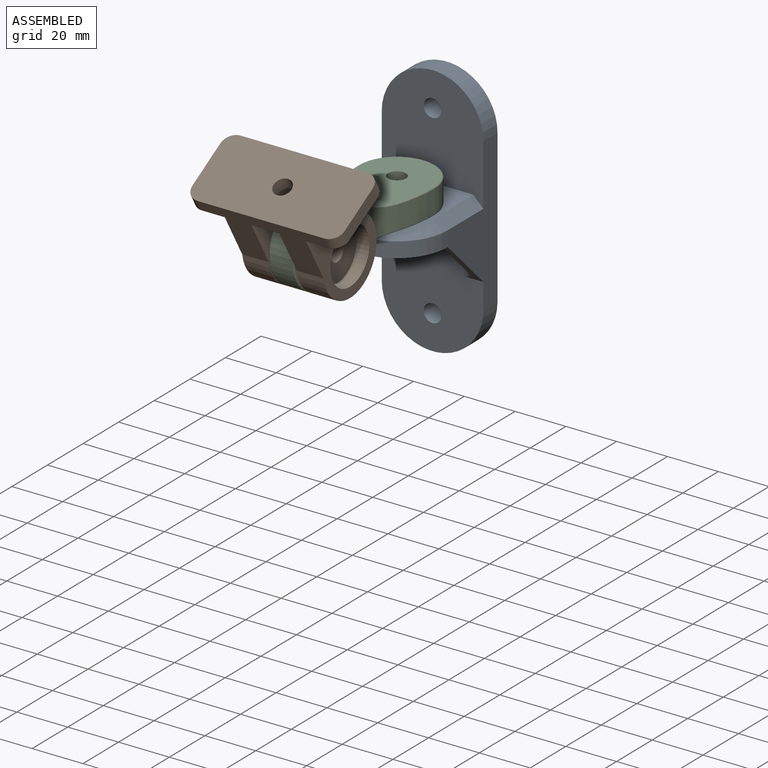
[diagram: assembled view]
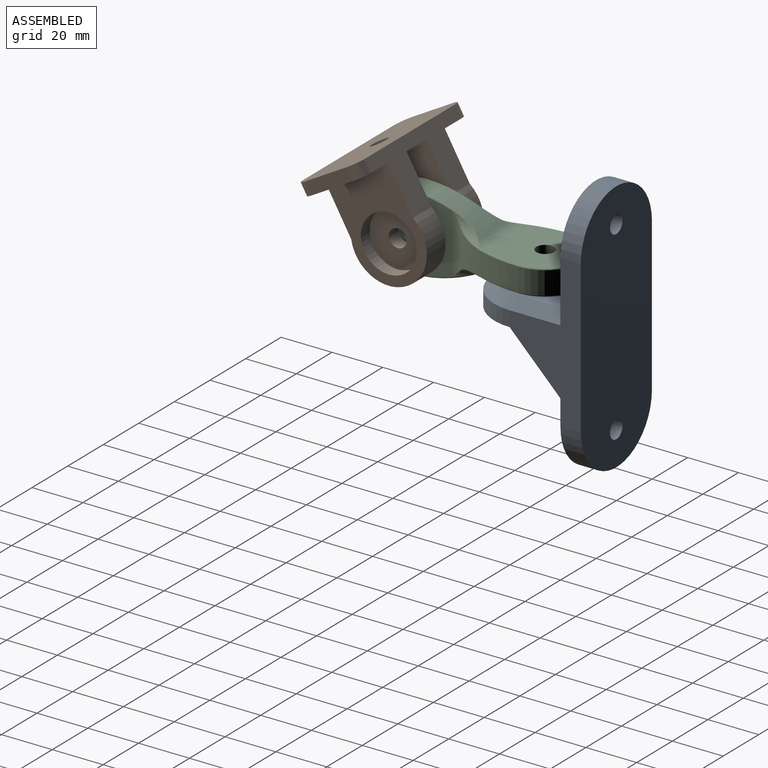
[diagram: assembled view, second angle]
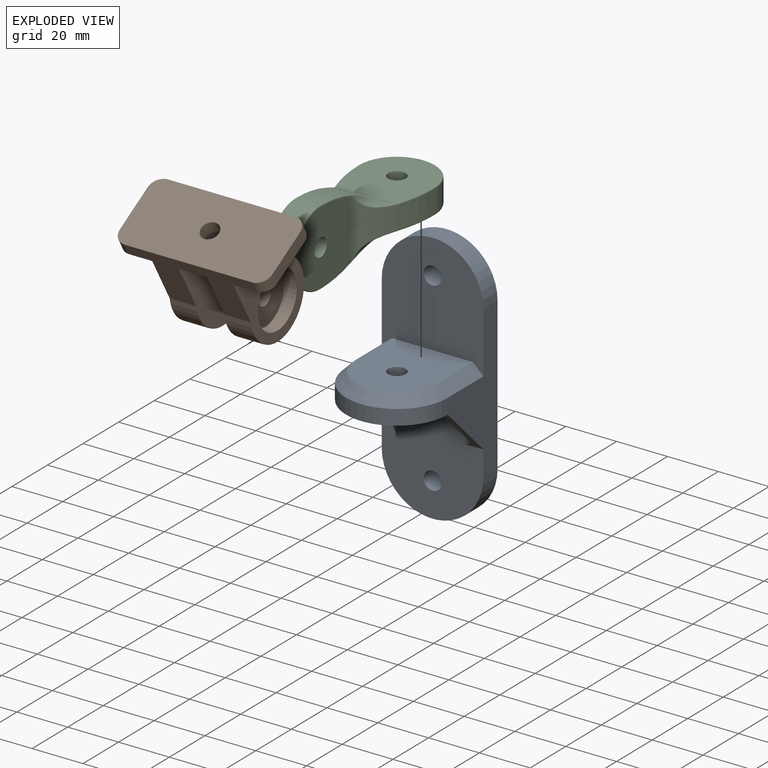
[diagram: exploded view]
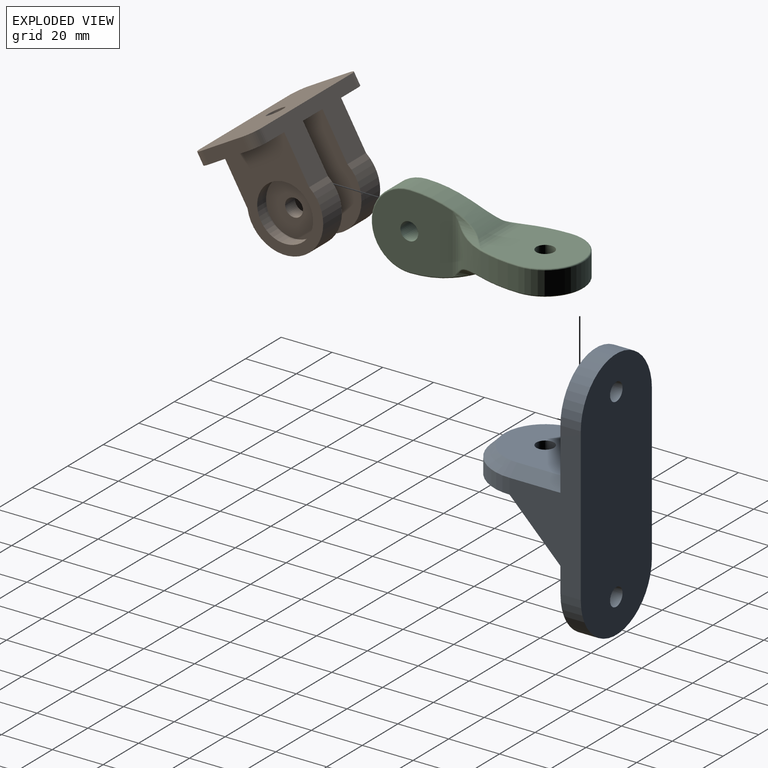
[diagram: exploded view, second angle]
ASSEMBLY  parts=3 mates=2
PART A: 27 faces, bbox 40x48x100 mm
  f0: plane 40x35mm, normal (0,0,-1), area 949.8mm2, adj f10,f11,f13,f15,f18,f20,f21
  f1: plane 44x40mm, normal (0,-1,0), area 1405.8mm2, adj f2,f4,f5,f6,f12,f24,f26
  f2: plane 60x28mm, normal (-1,0,0), area 800mm2, adj f1,f3,f6,f8,f9,f10,f13,f26
  f3: cylinder r=20mm len=40mm, axis (0,1,0), area 502.7mm2, adj f2,f4,f8,f9
  f4: plane 60x28mm, normal (1,0,0), area 800mm2, adj f1,f3,f6,f8,f9,f10,f15,f24
  f5: cylinder r=3.5mm len=8mm, axis (0,1,0), area 175.9mm2, adj f1,f9
  f6: cylinder r=20mm len=40mm, axis (0,1,0), area 502.7mm2, adj f1,f2,f4,f9
  f7: cylinder r=3.5mm len=8mm, axis (0,1,0), area 175.9mm2, adj f8,f9
  f8: plane 45x40mm, normal (0,-1,0), area 1349.8mm2, adj f2,f3,f4,f7,f13,f15,f17,f20
  f9: plane 100x40mm, normal (0,1,0), area 3579.7mm2, adj f2,f3,f4,f5,f6,f7
  f10: cylinder r=20mm len=40mm, axis (0,0,-1), area 377mm2, adj f0,f2,f4,f25
  f11: cylinder r=3.5mm len=10mm, axis (0,0,-1), area 219.9mm2, adj f0,f12
  f12: plane 36x32mm, normal (0,0,1), area 1003.6mm2, adj f1,f11,f24,f25,f26
  f13: plane 20x20mm, normal (0,-0.71,-0.71), area 100mm2, adj f0,f2,f8,f14,f17,f18
  f14: plane 10x10mm, normal (1,0,0), area 50mm2, adj f13,f17,f18
  f15: plane 20x20mm, normal (0,-0.71,-0.71), area 100mm2, adj f0,f4,f8,f16,f21,f23
  f16: plane 10x10mm, normal (-1,0,0), area 50mm2, adj f15,f21,f23
  f17: cylinder r=5mm len=15mm, axis (0,0,1), area 103.5mm2, adj f8,f13,f14,f19
  f18: cylinder r=5mm len=15mm, axis (0,1,0), area 103.5mm2, adj f0,f13,f14,f19
  f19: sphere r=5mm, area 39.3mm2, adj f17,f18,f20
  f20: cylinder r=5mm len=24mm, axis (1,0,0), area 188.5mm2, adj f0,f8,f19,f22
  f21: cylinder r=5mm len=15mm, axis (0,1,0), area 103.5mm2, adj f0,f15,f16,f22
  f22: sphere r=5mm, area 39.3mm2, adj f20,f21,f23
  f23: cylinder r=5mm len=15mm, axis (0,0,-1), area 103.5mm2, adj f8,f15,f16,f22
  f24: plane 20x4mm, normal (0.71,0,0.71), area 113.1mm2, adj f1,f4,f12,f25
  f25: cone r=16mm half-angle=45deg, axis (0,0,-1), area 319.9mm2, adj f10,f12,f24,f26
  f26: plane 20x4mm, normal (-0.71,0,0.71), area 113.1mm2, adj f1,f2,f12,f25
PART B: 25 faces, bbox 60x45x30 mm
  f0: cylinder r=3.5mm len=7mm, axis (1,0,0), area 121mm2, adj f19,f24
  f1: cylinder r=3.5mm len=7mm, axis (1,0,0), area 121mm2, adj f20,f22
  f2: plane 50x24.62mm, normal (0,0,1), area 661.9mm2, adj f4,f5,f6,f7,f13,f14,f15,f16
  f3: plane 50x24.62mm, normal (0,0,-1), area 661.9mm2, adj f4,f5,f6,f9,f10,f14,f15,f16
  f4: cylinder r=15mm len=30mm, axis (1,0,0), area 610.5mm2, adj f2,f3,f17,f19
  f5: cylinder r=15mm len=30mm, axis (1,0,0), area 610.5mm2, adj f2,f3,f16,f20
  f6: plane 28x14mm, normal (0,1,0), area 381.3mm2, adj f2,f3,f7,f8,f9,f17
  f7: cylinder r=5mm len=5mm, axis (0,1,0), area 39.3mm2, adj f2,f6,f8,f14
  f8: plane 18x5mm, normal (-1,0,0), area 90mm2, adj f6,f7,f9,f14
  f9: cylinder r=5mm len=5mm, axis (0,1,0), area 39.3mm2, adj f3,f6,f8,f14
  f10: cylinder r=5mm len=5mm, axis (0,1,0), area 39.3mm2, adj f3,f11,f14,f15
  f11: plane 18x5mm, normal (1,0,0), area 90mm2, adj f10,f13,f14,f15
  f12: cylinder r=3.5mm len=7mm, axis (0,1,0), area 110mm2, adj f14,f18
  f13: cylinder r=5mm len=5mm, axis (0,1,0), area 39.3mm2, adj f2,f11,f14,f15
  f14: plane 60x28mm, normal (0,-1,0), area 1620.1mm2, adj f2,f3,f7,f8,f9,f10,f11,f12
  f15: plane 28x14mm, normal (0,1,0), area 381.3mm2, adj f2,f3,f10,f11,f13,f16
  f16: plane 40x30mm, normal (1,0,0), area 680.5mm2, adj f2,f3,f5,f15,f21
  f17: plane 40x30mm, normal (-1,0,0), area 680.5mm2, adj f2,f3,f4,f6,f23
  f18: plane 28x11mm, normal (0,1,0), area 269.5mm2, adj f2,f3,f12,f19,f20
  f19: plane 40x30mm, normal (1,0,0), area 1022.2mm2, adj f0,f2,f3,f4,f18
  f20: plane 40x30mm, normal (-1,0,0), area 1022.2mm2, adj f1,f2,f3,f5,f18
  f21: cylinder r=11mm len=22mm, axis (1,0,0), area 345.6mm2, adj f16,f22
  f22: plane 22x22mm, normal (1,0,0), area 341.6mm2, adj f1,f21
  f23: cylinder r=11mm len=22mm, axis (-1,0,0), area 345.6mm2, adj f17,f24
  f24: plane 22x22mm, normal (-1,0,0), area 341.6mm2, adj f0,f23
PART C: 56 faces, bbox 32.5x82.5x32.5 mm
  f0: cylinder r=3.5mm len=10mm, axis (0,0,-1), area 219.9mm2, adj f6,f7
  f1: cylinder r=53.05mm len=29.31mm, axis (0,0,-1), area 304.5mm2, adj f5,f13,f29,f31,f33,f50,f53,f54
  f2: plane 31.32x29mm, normal (-1,0,0), area 748.9mm2, adj f11,f13,f43,f45,f47
  f3: plane 31.32x29mm, normal (1,0,0), area 748.9mm2, adj f11,f18,f28,f30,f32
  f4: cylinder r=53.05mm len=29.31mm, axis (0,0,-1), area 304.5mm2, adj f5,f18,f21,f22,f25,f42,f44,f46
  f5: cylinder r=15mm len=30mm, axis (0,0,-1), area 424.1mm2, adj f1,f4,f27,f48
  f6: plane 31.32x29mm, normal (0,0,1), area 748.9mm2, adj f0,f17,f25,f27,f29
  f7: plane 31.32x29mm, normal (0,0,-1), area 748.9mm2, adj f0,f14,f46,f48,f50
  f8: cylinder r=53.05mm len=29.31mm, axis (-1,0,0), area 304.5mm2, adj f9,f17,f23,f26,f28,f37,f40,f43
  f9: cylinder r=15mm len=30mm, axis (-1,0,0), area 424.1mm2, adj f8,f10,f30,f45
  f10: cylinder r=53.05mm len=29.31mm, axis (-1,0,0), area 304.5mm2, adj f9,f14,f32,f35,f38,f47,f49,f52
  f11: cylinder r=3.5mm len=10mm, axis (-1,0,0), area 219.9mm2, adj f2,f3
  f12: cylinder r=7mm len=15.56mm, axis (0,1,0), area 19.6mm2, adj f51,f52,f54,f55
  f13: cylinder r=7mm len=23.47mm, axis (0,0,-1), area 81.2mm2, adj f1,f2,f36,f40,f49,f51
  f14: cylinder r=7mm len=23.47mm, axis (-1,0,0), area 81.2mm2, adj f7,f10,f41,f44,f53,f55
  f15: cylinder r=7mm len=15.56mm, axis (0,-1,0), area 19.6mm2, adj f33,f34,f36,f37
  f16: cylinder r=7mm len=15.56mm, axis (0,-1,0), area 19.6mm2, adj f38,f39,f41,f42
  f17: cylinder r=7mm len=23.47mm, axis (-1,0,0), area 81.2mm2, adj f6,f8,f20,f22,f31,f34
  f18: cylinder r=7mm len=23.47mm, axis (0,0,-1), area 81.2mm2, adj f3,f4,f24,f26,f35,f39
  f19: cylinder r=7mm len=15.56mm, axis (0,1,0), area 19.6mm2, adj f20,f21,f23,f24
  f20: bspline ~4.37x4.37mm, area 1.2mm2, adj f17,f19,f21,f22,f23
  f21: bspline ~14.23x6.65mm, area 8.2mm2, adj f4,f19,f20,f22,f24
  f22: bspline ~1.47x0.93mm, area 0.3mm2, adj f4,f17,f20,f21,f25
  f23: bspline ~14.23x6.65mm, area 8.2mm2, adj f8,f19,f20,f24,f26
  f24: bspline ~4.37x4.37mm, area 1.2mm2, adj f18,f19,f21,f23,f26
  f25: torus R=52.55mm, axis (0,0,1), area 13.5mm2, adj f4,f6,f22,f27
  f26: bspline ~1.47x0.93mm, area 0.3mm2, adj f8,f18,f23,f24,f28
  f27: torus R=14.5mm, axis (0,0,1), area 36.6mm2, adj f5,f6,f25,f29
  f28: torus R=52.55mm, axis (1,0,0), area 13.5mm2, adj f3,f8,f26,f30
  f29: torus R=52.55mm, axis (0,0,1), area 13.5mm2, adj f1,f6,f27,f31
  f30: torus R=14.5mm, axis (1,0,0), area 36.6mm2, adj f3,f9,f28,f32
  f31: bspline ~3.53x1.65mm, area 0.3mm2, adj f1,f17,f29,f33,f34
  f32: torus R=52.55mm, axis (1,0,0), area 13.5mm2, adj f3,f10,f30,f35
  f33: bspline ~14.23x6.65mm, area 8.2mm2, adj f1,f15,f31,f34,f36
  f34: bspline ~4.37x4.37mm, area 1.2mm2, adj f15,f17,f31,f33,f37
  f35: bspline ~3.53x1.65mm, area 0.3mm2, adj f10,f18,f32,f38,f39
  f36: bspline ~4.37x4.37mm, area 1.2mm2, adj f13,f15,f33,f37,f40
  f37: bspline ~14.23x6.65mm, area 8.2mm2, adj f8,f15,f34,f36,f40
  f38: bspline ~14.23x6.65mm, area 8.2mm2, adj f10,f16,f35,f39,f41
  f39: bspline ~4.37x4.37mm, area 1.2mm2, adj f16,f18,f35,f38,f42
  f40: bspline ~3.53x1.65mm, area 0.3mm2, adj f8,f13,f36,f37,f43
  f41: bspline ~4.37x4.37mm, area 1.2mm2, adj f14,f16,f38,f42,f44
  f42: bspline ~14.23x6.65mm, area 8.2mm2, adj f4,f16,f39,f41,f44
  f43: torus R=52.55mm, axis (1,0,0), area 13.5mm2, adj f2,f8,f40,f45
  f44: bspline ~3.53x1.65mm, area 0.3mm2, adj f4,f14,f41,f42,f46
  f45: torus R=14.5mm, axis (1,0,0), area 36.6mm2, adj f2,f9,f43,f47
  f46: torus R=52.55mm, axis (0,0,1), area 13.5mm2, adj f4,f7,f44,f48
  f47: torus R=52.55mm, axis (1,0,0), area 13.5mm2, adj f2,f10,f45,f49
  f48: torus R=14.5mm, axis (0,0,1), area 36.6mm2, adj f5,f7,f46,f50
  f49: bspline ~1.47x0.93mm, area 0.3mm2, adj f10,f13,f47,f51,f52
  f50: torus R=52.55mm, axis (0,0,1), area 13.5mm2, adj f1,f7,f48,f53
  f51: bspline ~4.37x4.37mm, area 1.2mm2, adj f12,f13,f49,f52,f54
  f52: bspline ~14.23x6.65mm, area 8.2mm2, adj f10,f12,f49,f51,f55
  f53: bspline ~1.47x0.93mm, area 0.3mm2, adj f1,f14,f50,f54,f55
  f54: bspline ~14.23x6.65mm, area 8.2mm2, adj f1,f12,f51,f53,f55
  f55: bspline ~4.37x4.37mm, area 1.2mm2, adj f12,f14,f52,f53,f54
PLACE A t=(-31.98,1.6,6.12)mm
PLACE B rot(axis=(-1,0,0),60deg) t=(-31.48,-88.9,42.77)mm
PLACE C t=(-31.98,-26.4,16.12)mm
MATE revolute B.f4 <-> C.f45  axis (1,0,0) through (-36.98,-76.4,21.12)mm
MATE revolute C.f0 <-> A.f11  axis (0,0,-1) through (-31.98,-26.4,16.12)mm
